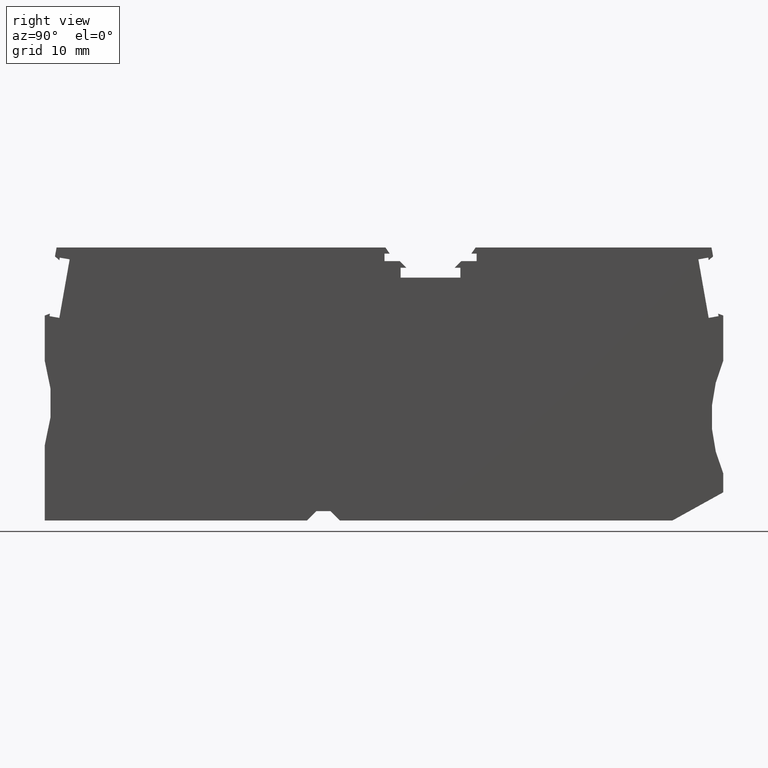
[diagram: clean part render]
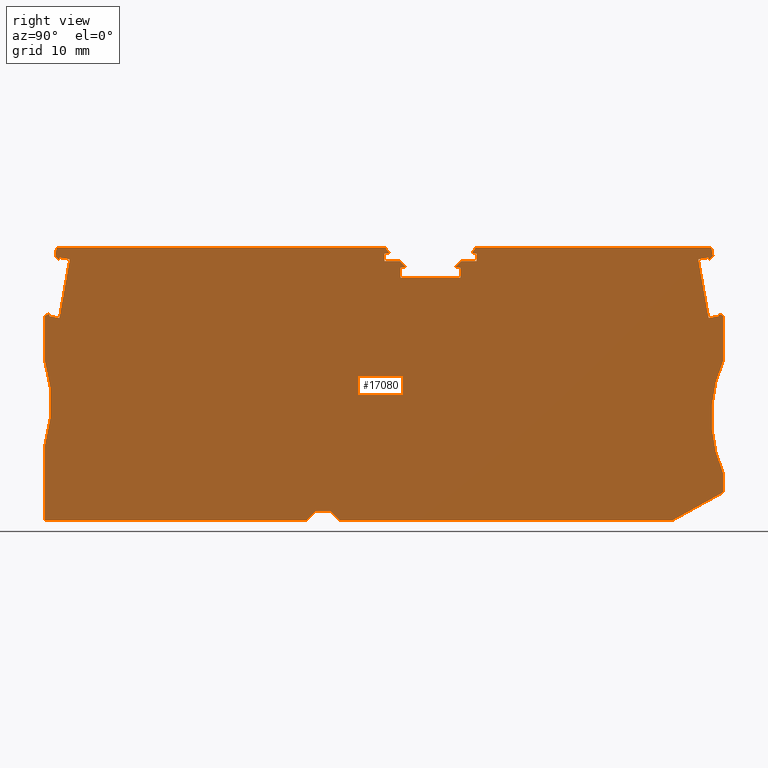
[diagram: same view with one face highlighted and labeled with its STEP entity id]
A machine part, right view. The second image highlights one B-rep face of the part: STEP entity #17080.
In plain terms, the highlighted planar face has unit normal (1, 0, 0).
Its self-contained STEP definition (entity closure, byte-faithful):
#200=CARTESIAN_POINT('',(37.6135285892874,-10.6000000000277,
2.14999999999998));
#210=VERTEX_POINT('',#200);
#240=CARTESIAN_POINT('',(47.920285,-10.6000000000277,2.14999999999998));
#250=DIRECTION('',(1.,-9.71445146547012E-17,0.));
#260=VECTOR('',#250,1.);
#270=LINE('',#240,#260);
#280=CARTESIAN_POINT('',(35.9796808261869,-10.6000000000277,
2.14999999999998));
#290=VERTEX_POINT('',#280);
#300=EDGE_CURVE('',#290,#210,#270,.T.);
#530=CARTESIAN_POINT('',(47.920285,-38.1999999999979,2.14999999999998));
#540=DIRECTION('',(-1.,1.94289029309402E-16,0.));
#550=VECTOR('',#540,1.);
#560=LINE('',#530,#550);
#570=CARTESIAN_POINT('',(35.6296808260589,-38.1999999999979,
2.14999999999998));
#580=VERTEX_POINT('',#570);
#590=CARTESIAN_POINT('',(31.2296808260789,-38.1999999999979,
2.14999999999998));
#600=VERTEX_POINT('',#590);
#610=EDGE_CURVE('',#580,#600,#560,.T.);
#1000=CARTESIAN_POINT('',(-0.170319173948428,-33.8861270000014,
2.14999999999999));
#1010=DIRECTION('',(0.,1.,0.));
#1020=VECTOR('',#1010,1.);
#1030=LINE('',#1000,#1020);
#1040=CARTESIAN_POINT('',(-0.170319173953686,-21.1999999999938,
2.14999999999998));
#1050=VERTEX_POINT('',#1040);
#1060=CARTESIAN_POINT('',(-0.170319173947945,-16.3865101165625,
2.14999999999998));
#1070=VERTEX_POINT('',#1060);
#1080=EDGE_CURVE('',#1050,#1070,#1030,.T.);
#5020=CARTESIAN_POINT('',(45.7796808261512,-10.599999999985,
2.14999999999998));
#5030=VERTEX_POINT('',#5020);
#5060=CARTESIAN_POINT('',(47.920285,-10.599999999985,2.14999999999998));
#5070=DIRECTION('',(1.,-9.71445146547012E-17,0.));
#5080=VECTOR('',#5070,1.);
#5090=LINE('',#5060,#5080);
#5100=CARTESIAN_POINT('',(44.1458330630939,-10.599999999985,
2.14999999999998));
#5110=VERTEX_POINT('',#5100);
#5120=EDGE_CURVE('',#5110,#5030,#5090,.T.);
#5390=CARTESIAN_POINT('',(45.2231141955397,-9.79999999994338,
2.14999999999998));
#5400=VERTEX_POINT('',#5390);
#5480=CARTESIAN_POINT('',(45.6782490953308,-9.15000000000795,
2.14999999999998));
#5490=VERTEX_POINT('',#5480);
#5520=CARTESIAN_POINT('',(23.2892708834851,-41.1247746062483,
2.14999999999998));
#5530=DIRECTION('',(-0.573576436351043,-0.819152044288994,0.));
#5540=VECTOR('',#5530,1.);
#5550=LINE('',#5520,#5540);
#5560=EDGE_CURVE('',#5490,#5400,#5550,.T.);
#5680=CARTESIAN_POINT('',(66.6223898660811,-38.1999999999979,
2.14999999999998));
#5690=VERTEX_POINT('',#5680);
#5700=EDGE_CURVE('',#5690,#580,#560,.T.);
#5990=CARTESIAN_POINT('',(44.054680826169,-12.350000000018,
2.14999999999998));
#6000=VERTEX_POINT('',#5990);
#6080=CARTESIAN_POINT('',(44.054680826169,-11.3000000000183,
2.14999999999998));
#6090=VERTEX_POINT('',#6080);
#6120=CARTESIAN_POINT('',(44.0546808261691,-33.886127,2.14999999999998))
;
#6130=DIRECTION('',(-7.77156117237609E-16,1.,0.));
#6140=VECTOR('',#6130,1.);
#6150=LINE('',#6120,#6140);
#6160=EDGE_CURVE('',#6000,#6090,#6150,.T.);
#6330=CARTESIAN_POINT('',(47.920285,-9.15000000001752,2.14999999999998))
;
#6340=DIRECTION('',(1.,1.21042065259758E-13,0.));
#6350=VECTOR('',#6340,1.);
#6360=LINE('',#6330,#6350);
#6370=CARTESIAN_POINT('',(1.08628446096783,-9.15000000002318,
2.14999999999998));
#6380=VERTEX_POINT('',#6370);
#6390=CARTESIAN_POINT('',(36.0811125570149,-9.15000000001895,
2.14999999999998));
#6400=VERTEX_POINT('',#6390);
#6410=EDGE_CURVE('',#6380,#6400,#6360,.T.);
#6750=CARTESIAN_POINT('',(37.7046808261691,-11.3000000000179,
2.14999999999998));
#6760=VERTEX_POINT('',#6750);
#6840=CARTESIAN_POINT('',(37.704680826169,-12.3500000000177,
2.14999999999998));
#6850=VERTEX_POINT('',#6840);
#6880=CARTESIAN_POINT('',(37.7046808261678,-33.886127,2.14999999999998))
;
#6890=DIRECTION('',(5.79536418854332E-14,1.,0.));
#6900=VECTOR('',#6890,1.);
#6910=LINE('',#6880,#6900);
#6920=EDGE_CURVE('',#6850,#6760,#6910,.T.);
#7090=CARTESIAN_POINT('',(72.0296808260518,-33.886127,2.14999999996732))
;
#7100=DIRECTION('',(0.,-1.,0.));
#7110=VECTOR('',#7100,1.);
#7120=LINE('',#7090,#7110);
#7130=CARTESIAN_POINT('',(72.0296808260523,-33.2000000000014,
2.14999999999998));
#7140=VERTEX_POINT('',#7130);
#7150=CARTESIAN_POINT('',(72.0296808260523,-35.2000000000067,
2.14999999999998));
#7160=VERTEX_POINT('',#7150);
#7170=EDGE_CURVE('',#7140,#7160,#7120,.T.);
#7510=CARTESIAN_POINT('',(1.38386609816087,-16.6401049483586,
2.14999999999998));
#7520=VERTEX_POINT('',#7510);
#7550=CARTESIAN_POINT('',(47.920285,-24.8457311863151,2.14999999999998))
;
#7560=DIRECTION('',(-0.984807753012169,0.173648177667154,0.));
#7570=VECTOR('',#7560,1.);
#7580=LINE('',#7550,#7570);
#7590=CARTESIAN_POINT('',(0.336322370407451,-16.4553947256835,
2.14999999999998));
#7600=VERTEX_POINT('',#7590);
#7610=EDGE_CURVE('',#7520,#7600,#7580,.T.);
#7890=CARTESIAN_POINT('',(1.38653735598384,-10.4993295712965,
2.14999999999998));
#7900=VERTEX_POINT('',#7890);
#7980=CARTESIAN_POINT('',(0.917724832610709,-10.1059491558438,
2.14999999999998));
#7990=VERTEX_POINT('',#7980);
#8020=CARTESIAN_POINT('',(47.920285,-49.5457800565808,2.14999999999998))
;
#8030=DIRECTION('',(0.766044443119839,-0.642787609685513,0.));
#8040=VECTOR('',#8030,1.);
#8050=LINE('',#8020,#8040);
#8060=EDGE_CURVE('',#7990,#7900,#8050,.T.);
#8270=CARTESIAN_POINT('',(70.4756883370464,-16.6411982757885,
2.14999999999998));
#8280=VERTEX_POINT('',#8270);
#8360=CARTESIAN_POINT('',(71.5294326327686,-16.4553947256848,
2.14999999999998));
#8370=VERTEX_POINT('',#8360);
#8400=CARTESIAN_POINT('',(47.920285,-20.6183244448769,2.14999999999998))
;
#8410=DIRECTION('',(0.984807753012168,0.173648177667156,0.));
#8420=VECTOR('',#8410,1.);
#8430=LINE('',#8400,#8420);
#8440=EDGE_CURVE('',#8280,#8370,#8430,.T.);
#8610=CARTESIAN_POINT('',(47.920285,-48.5760487485154,2.14999999999998))
;
#8620=DIRECTION('',(-0.874435210897321,-0.485142311021167,0.));
#8630=VECTOR('',#8620,1.);
#8640=LINE('',#8610,#8630);
#8650=EDGE_CURVE('',#7160,#5690,#8640,.T.);
#8890=CARTESIAN_POINT('',(2.48199803879827,-10.4122892378876,
2.14999999999998));
#8900=VERTEX_POINT('',#8890);
#8980=CARTESIAN_POINT('',(1.43445431104377,-10.2275790152126,
2.14999999999998));
#8990=VERTEX_POINT('',#8980);
#9020=CARTESIAN_POINT('',(47.920285,-18.4242851863154,2.14999999999998))
;
#9030=DIRECTION('',(-0.984807753012229,0.173648177666812,0.));
#9040=VECTOR('',#9030,1.);
#9050=LINE('',#9020,#9040);
#9060=EDGE_CURVE('',#8900,#8990,#9050,.T.);
#9270=CARTESIAN_POINT('',(27.7296808260141,-38.1999999999979,
2.14999999999998));
#9280=VERTEX_POINT('',#9270);
#9310=CARTESIAN_POINT('',(32.043553826012,-33.886127,2.14999999999998));
#9320=DIRECTION('',(0.707106781186543,0.707106781186552,0.));
#9330=VECTOR('',#9320,1.);
#9340=LINE('',#9310,#9330);
#9350=CARTESIAN_POINT('',(28.7296808260465,-37.1999999999655,
2.14999999999998));
#9360=VERTEX_POINT('',#9350);
#9370=EDGE_CURVE('',#9280,#9360,#9340,.T.);
#9620=CARTESIAN_POINT('',(-14.4794071952026,-25.7000000000105,
2.14999999999999));
#9630=DIRECTION('',(0.,0.,1.));
#9640=DIRECTION('',(1.,0.,0.));
#9650=AXIS2_PLACEMENT_3D('',#9620,#9630,#9640);
#9660=CIRCLE('',#9650,15.);
#9670=CARTESIAN_POINT('',(-0.170319173948926,-30.200000000012,
2.14999999999998));
#9680=VERTEX_POINT('',#9670);
#9690=EDGE_CURVE('',#9680,#1050,#9660,.T.);
#9940=CARTESIAN_POINT('',(35.9796808263156,-33.886127,2.14999999999998))
;
#9950=DIRECTION('',(5.52601020498144E-12,-1.,0.));
#9960=VECTOR('',#9950,1.);
#9970=LINE('',#9940,#9960);
#9980=CARTESIAN_POINT('',(35.9796808261825,-9.79999999994336,
2.14999999999998));
#9990=VERTEX_POINT('',#9980);
#10000=EDGE_CURVE('',#9990,#290,#9970,.T.);
#10280=CARTESIAN_POINT('',(30.2296808260465,-37.1999999999655,
2.14999999999998));
#10290=VERTEX_POINT('',#10280);
#10320=CARTESIAN_POINT('',(26.915807826081,-33.886127,2.14999999999998))
;
#10330=DIRECTION('',(0.707106781186546,-0.707106781186549,0.));
#10340=VECTOR('',#10330,1.);
#10350=LINE('',#10320,#10340);
#10360=EDGE_CURVE('',#10290,#600,#10350,.T.);
#10550=CARTESIAN_POINT('',(47.920285,-9.15000000000795,2.14999999999998)
);
#10560=DIRECTION('',(1.,0.,0.));
#10570=VECTOR('',#10560,1.);
#10580=LINE('',#10550,#10570);
#10590=CARTESIAN_POINT('',(70.7794705422074,-9.15000000000794,
2.14999999999998));
#10600=VERTEX_POINT('',#10590);
#10610=EDGE_CURVE('',#5490,#10600,#10580,.T.);
#10880=CARTESIAN_POINT('',(85.7774079109193,-27.2000000000027,
2.14999999996732));
#10890=DIRECTION('',(0.,0.,1.));
#10900=DIRECTION('',(1.,0.,0.));
#10910=AXIS2_PLACEMENT_3D('',#10880,#10890,#10900);
#10920=CIRCLE('',#10910,15.);
#10930=CARTESIAN_POINT('',(72.0296808260518,-21.2000000000027,
2.14999999999998));
#10940=VERTEX_POINT('',#10930);
#10950=EDGE_CURVE('',#10940,#7140,#10920,.T.);
#11220=CARTESIAN_POINT('',(0.384046542360117,-16.1847374969332,
2.14999999999998));
#11230=VERTEX_POINT('',#11220);
#11260=CARTESIAN_POINT('',(47.920285,1.11703835023839,2.14999999999998))
;
#11270=DIRECTION('',(0.939692620788384,0.342020143318867,0.));
#11280=VECTOR('',#11270,1.);
#11290=LINE('',#11260,#11280);
#11300=EDGE_CURVE('',#1070,#11230,#11290,.T.);
#11530=CARTESIAN_POINT('',(45.7796808261557,-9.79999999994338,
2.14999999999998));
#11540=VERTEX_POINT('',#11530);
#11570=CARTESIAN_POINT('',(45.7796808260226,-33.886127,2.14999999999998)
);
#11580=DIRECTION('',(5.52620449401076E-12,1.,0.));
#11590=VECTOR('',#11580,1.);
#11600=LINE('',#11570,#11590);
#11610=EDGE_CURVE('',#5030,#11540,#11600,.T.);
#11840=CARTESIAN_POINT('',(-0.170319173947931,-38.1999999999979,
2.14999999999998));
#11850=VERTEX_POINT('',#11840);
#11900=CARTESIAN_POINT('',(-0.170319173948428,-33.8861270000014,
2.14999999999999));
#11910=DIRECTION('',(0.,1.,0.));
#11920=VECTOR('',#11910,1.);
#11930=LINE('',#11900,#11920);
#11940=EDGE_CURVE('',#11850,#9680,#11930,.T.);
#12130=CARTESIAN_POINT('',(-1.65707289944024,-33.886127,2.14999999999998
));
#12140=DIRECTION('',(0.173648177667129,0.984807753012173,0.));
#12150=VECTOR('',#12140,1.);
#12160=LINE('',#12130,#12150);
#12170=EDGE_CURVE('',#7520,#8900,#12160,.T.);
#12410=CARTESIAN_POINT('',(43.4458330630605,-11.3000000000183,
2.14999999999998));
#12420=VERTEX_POINT('',#12410);
#12450=CARTESIAN_POINT('',(47.920285,-11.3000000000185,2.14999999999998)
);
#12460=DIRECTION('',(1.,-4.56162885242861E-14,0.));
#12470=VECTOR('',#12460,1.);
#12480=LINE('',#12450,#12470);
#12490=EDGE_CURVE('',#12420,#6090,#12480,.T.);
#12690=CARTESIAN_POINT('',(3.22184767785717,-9.79999999994338,
2.14999999999998));
#12700=DIRECTION('',(1.,1.19716140932156E-55,0.));
#12710=VECTOR('',#12700,1.);
#12720=LINE('',#12690,#12710);
#12730=EDGE_CURVE('',#5400,#11540,#12720,.T.);
#12940=CARTESIAN_POINT('',(72.0296808260518,-16.3865101166626,
2.14999999999998));
#12950=VERTEX_POINT('',#12940);
#13000=CARTESIAN_POINT('',(72.0296808260518,-33.886127,2.14999999997032)
);
#13010=DIRECTION('',(-1.09031936698579E-24,1.,8.75090144670989E-15));
#13020=VECTOR('',#13010,1.);
#13030=LINE('',#13000,#13020);
#13040=EDGE_CURVE('',#10940,#12950,#13030,.T.);
#13270=CARTESIAN_POINT('',(36.5362474567983,-9.79999999994336,
2.14999999999998));
#13280=VERTEX_POINT('',#13270);
#13310=CARTESIAN_POINT('',(53.4015351485143,-33.886127,2.14999999999998)
);
#13320=DIRECTION('',(-0.573576436351043,0.819152044288994,0.));
#13330=VECTOR('',#13320,1.);
#13340=LINE('',#13310,#13330);
#13350=EDGE_CURVE('',#13280,#6400,#13340,.T.);
#13560=CARTESIAN_POINT('',(38.3135285892775,-11.3000000000179,
2.14999999999998));
#13570=VERTEX_POINT('',#13560);
#13620=CARTESIAN_POINT('',(47.920285,-11.300000000018,2.14999999999998))
;
#13630=DIRECTION('',(-1.,1.16434639707563E-14,0.));
#13640=VECTOR('',#13630,1.);
#13650=LINE('',#13620,#13640);
#13660=EDGE_CURVE('',#13570,#6760,#13650,.T.);
#13880=CARTESIAN_POINT('',(70.4783936311997,-10.4946563443807,
2.14999999999998));
#13890=VERTEX_POINT('',#13880);
#13920=CARTESIAN_POINT('',(59.720285,-19.5217813289609,2.14999999993699)
);
#13930=DIRECTION('',(-0.766044443119838,-0.642787609685515,
-2.0879409312613E-12));
#13940=VECTOR('',#13930,1.);
#13950=LINE('',#13920,#13940);
#13960=CARTESIAN_POINT('',(70.9472061545747,-10.1012759289265,
2.14999999999998));
#13970=VERTEX_POINT('',#13960);
#13980=EDGE_CURVE('',#13970,#13890,#13950,.T.);
#14210=CARTESIAN_POINT('',(-2.73718602307331,-33.886127,2.14999999999998
));
#14220=DIRECTION('',(-0.17364817766764,-0.984807753012083,0.));
#14230=VECTOR('',#14220,1.);
#14240=LINE('',#14210,#14230);
#14250=EDGE_CURVE('',#11230,#7600,#14240,.T.);
#14460=CARTESIAN_POINT('',(47.920285,-6.82554806307934,2.14999999999998)
);
#14470=DIRECTION('',(0.707106781186589,0.707106781186506,0.));
#14480=VECTOR('',#14470,1.);
#14490=LINE('',#14460,#14480);
#14500=EDGE_CURVE('',#12420,#5110,#14490,.T.);
#14710=CARTESIAN_POINT('',(75.1411171305482,-33.886127,2.14999999996731)
);
#14720=DIRECTION('',(0.173648177667356,-0.984807753012133,0.));
#14730=VECTOR('',#14720,1.);
#14740=LINE('',#14710,#14730);
#14750=EDGE_CURVE('',#10600,#13970,#14740,.T.);
#14940=CARTESIAN_POINT('',(47.920285,-37.1999999999655,2.14999999999998)
);
#14950=DIRECTION('',(1.,3.01922319318994E-15,0.));
#14960=VECTOR('',#14950,1.);
#14970=LINE('',#14940,#14960);
#14980=EDGE_CURVE('',#9360,#10290,#14970,.T.);
#15190=CARTESIAN_POINT('',(47.920285,-20.9067564107403,2.14999999999998)
);
#15200=DIRECTION('',(0.707106781186548,-0.707106781186547,0.));
#15210=VECTOR('',#15200,1.);
#15220=LINE('',#15190,#15210);
#15230=EDGE_CURVE('',#210,#13570,#15220,.T.);
#15440=CARTESIAN_POINT('',(47.920285,-9.79999999994336,2.14999999999998)
);
#15450=DIRECTION('',(1.,1.19716140932156E-55,0.));
#15460=VECTOR('',#15450,1.);
#15470=LINE('',#15440,#15460);
#15480=EDGE_CURVE('',#9990,#13280,#15470,.T.);
#15650=CARTESIAN_POINT('',(74.602941026221,-33.886127,2.14999999999998))
;
#15660=DIRECTION('',(-0.173648177666328,0.984807753012314,0.));
#15670=VECTOR('',#15660,1.);
#15680=LINE('',#15650,#15670);
#15690=CARTESIAN_POINT('',(70.431107909025,-10.2264856878827,
2.14999999999998));
#15700=VERTEX_POINT('',#15690);
#15710=EDGE_CURVE('',#13890,#15700,#15680,.T.);
#15960=CARTESIAN_POINT('',(59.720285,-11.90625643428,2.14999999993705));
#15970=DIRECTION('',(0.939692620788385,-0.342020143318865,
2.55132026616423E-12));
#15980=VECTOR('',#15970,1.);
#15990=LINE('',#15960,#15980);
#16000=CARTESIAN_POINT('',(71.4821469105939,-16.1872240691891,
2.14999999999998));
#16010=VERTEX_POINT('',#16000);
#16020=EDGE_CURVE('',#16010,#12950,#15990,.T.);
#16220=CARTESIAN_POINT('',(37.1796808260464,-32.4250000000029,
2.14999999999998));
#16230=DIRECTION('',(0.,0.,1.));
#16240=DIRECTION('',(1.,0.,0.));
#16250=AXIS2_PLACEMENT_3D('',#16220,#16230,#16240);
#16260=PLANE('',#16250);
#16270=ORIENTED_EDGE('',*,*,#12170,.F.);
#16280=ORIENTED_EDGE('',*,*,#9060,.F.);
#16290=CARTESIAN_POINT('',(-2.73718602304515,-33.886127,2.14999999999998
));
#16300=DIRECTION('',(0.173648177666326,0.984807753012315,0.));
#16310=VECTOR('',#16300,1.);
#16320=LINE('',#16290,#16310);
#16330=EDGE_CURVE('',#7900,#8990,#16320,.T.);
#16340=ORIENTED_EDGE('',*,*,#16330,.T.);
#16350=ORIENTED_EDGE('',*,*,#8060,.T.);
#16360=CARTESIAN_POINT('',(-3.27536212737045,-33.8861270000014,
2.14999999999998));
#16370=DIRECTION('',(-0.173648177667354,-0.984807753012134,0.));
#16380=VECTOR('',#16370,1.);
#16390=LINE('',#16360,#16380);
#16400=EDGE_CURVE('',#6380,#7990,#16390,.T.);
#16410=ORIENTED_EDGE('',*,*,#16400,.T.);
#16420=ORIENTED_EDGE('',*,*,#6410,.F.);
#16430=ORIENTED_EDGE('',*,*,#13350,.T.);
#16440=ORIENTED_EDGE('',*,*,#15480,.T.);
#16450=ORIENTED_EDGE('',*,*,#10000,.F.);
#16460=ORIENTED_EDGE('',*,*,#300,.F.);
#16470=ORIENTED_EDGE('',*,*,#15230,.F.);
#16480=ORIENTED_EDGE('',*,*,#13660,.F.);
#16490=ORIENTED_EDGE('',*,*,#6920,.T.);
#16500=CARTESIAN_POINT('',(47.920285,-12.3500000000183,2.14999999999998)
);
#16510=DIRECTION('',(1.,-5.79536418854332E-14,0.));
#16520=VECTOR('',#16510,1.);
#16530=LINE('',#16500,#16520);
#16540=EDGE_CURVE('',#6850,#6000,#16530,.T.);
#16550=ORIENTED_EDGE('',*,*,#16540,.F.);
#16560=ORIENTED_EDGE('',*,*,#6160,.F.);
#16570=ORIENTED_EDGE('',*,*,#12490,.T.);
#16580=ORIENTED_EDGE('',*,*,#14500,.F.);
#16590=ORIENTED_EDGE('',*,*,#5120,.F.);
#16600=ORIENTED_EDGE('',*,*,#11610,.F.);
#16610=ORIENTED_EDGE('',*,*,#12730,.T.);
#16620=ORIENTED_EDGE('',*,*,#5560,.T.);
#16630=ORIENTED_EDGE('',*,*,#10610,.F.);
#16640=ORIENTED_EDGE('',*,*,#14750,.F.);
#16650=ORIENTED_EDGE('',*,*,#13980,.F.);
#16660=ORIENTED_EDGE('',*,*,#15710,.F.);
#16670=CARTESIAN_POINT('',(47.920285,-14.1957511246913,2.14999999999998)
);
#16680=DIRECTION('',(0.984807753012229,0.173648177666814,0.));
#16690=VECTOR('',#16680,1.);
#16700=LINE('',#16670,#16690);
#16710=CARTESIAN_POINT('',(69.3773636133017,-10.4122892379863,
2.14999999999998));
#16720=VERTEX_POINT('',#16710);
#16730=EDGE_CURVE('',#16720,#15700,#16700,.T.);
#16740=ORIENTED_EDGE('',*,*,#16730,.T.);
#16750=CARTESIAN_POINT('',(73.5164345515229,-33.886127,2.14999999997436)
);
#16760=DIRECTION('',(0.173648177667131,-0.984807753012173,
4.63420968266348E-13));
#16770=VECTOR('',#16760,1.);
#16780=LINE('',#16750,#16770);
#16790=EDGE_CURVE('',#16720,#8280,#16780,.T.);
#16800=ORIENTED_EDGE('',*,*,#16790,.F.);
#16810=ORIENTED_EDGE('',*,*,#8440,.F.);
#16820=CARTESIAN_POINT('',(74.6029410262491,-33.886127,2.14999999999998)
);
#16830=DIRECTION('',(0.173648177667642,-0.984807753012083,0.));
#16840=VECTOR('',#16830,1.);
#16850=LINE('',#16820,#16840);
#16860=EDGE_CURVE('',#16010,#8370,#16850,.T.);
#16870=ORIENTED_EDGE('',*,*,#16860,.T.);
#16880=ORIENTED_EDGE('',*,*,#16020,.F.);
#16890=ORIENTED_EDGE('',*,*,#13040,.T.);
#16900=ORIENTED_EDGE('',*,*,#10950,.F.);
#16910=ORIENTED_EDGE('',*,*,#7170,.F.);
#16920=ORIENTED_EDGE('',*,*,#8650,.F.);
#16930=ORIENTED_EDGE('',*,*,#5700,.F.);
#16940=ORIENTED_EDGE('',*,*,#610,.F.);
#16950=ORIENTED_EDGE('',*,*,#10360,.T.);
#16960=ORIENTED_EDGE('',*,*,#14980,.T.);
#16970=ORIENTED_EDGE('',*,*,#9370,.T.);
#16980=EDGE_CURVE('',#9280,#11850,#560,.T.);
#16990=ORIENTED_EDGE('',*,*,#16980,.F.);
#17000=ORIENTED_EDGE('',*,*,#11940,.F.);
#17010=ORIENTED_EDGE('',*,*,#9690,.F.);
#17020=ORIENTED_EDGE('',*,*,#1080,.F.);
#17030=ORIENTED_EDGE('',*,*,#11300,.F.);
#17040=ORIENTED_EDGE('',*,*,#14250,.F.);
#17050=ORIENTED_EDGE('',*,*,#7610,.T.);
#17060=EDGE_LOOP('',(#17050,#17040,#17030,#17020,#17010,#17000,#16990,
#16970,#16960,#16950,#16940,#16930,#16920,#16910,#16900,#16890,#16880,
#16870,#16810,#16800,#16740,#16660,#16650,#16640,#16630,#16620,#16610,
#16600,#16590,#16580,#16570,#16560,#16550,#16490,#16480,#16470,#16460,
#16450,#16440,#16430,#16420,#16410,#16350,#16340,#16280,#16270));
#17070=FACE_OUTER_BOUND('',#17060,.T.);
#17080=ADVANCED_FACE('',(#17070),#16260,.T.);